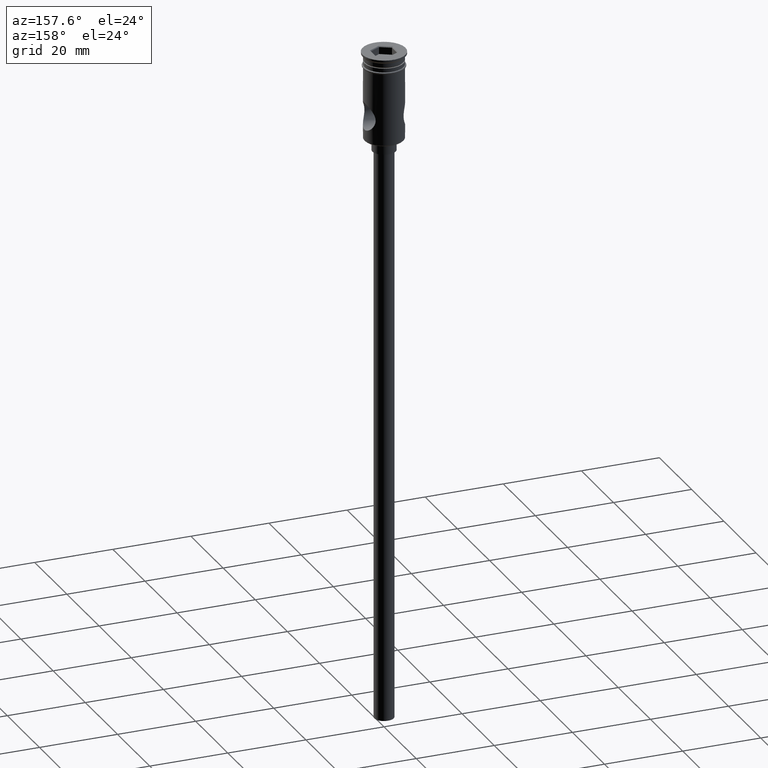
[diagram: clean part render]
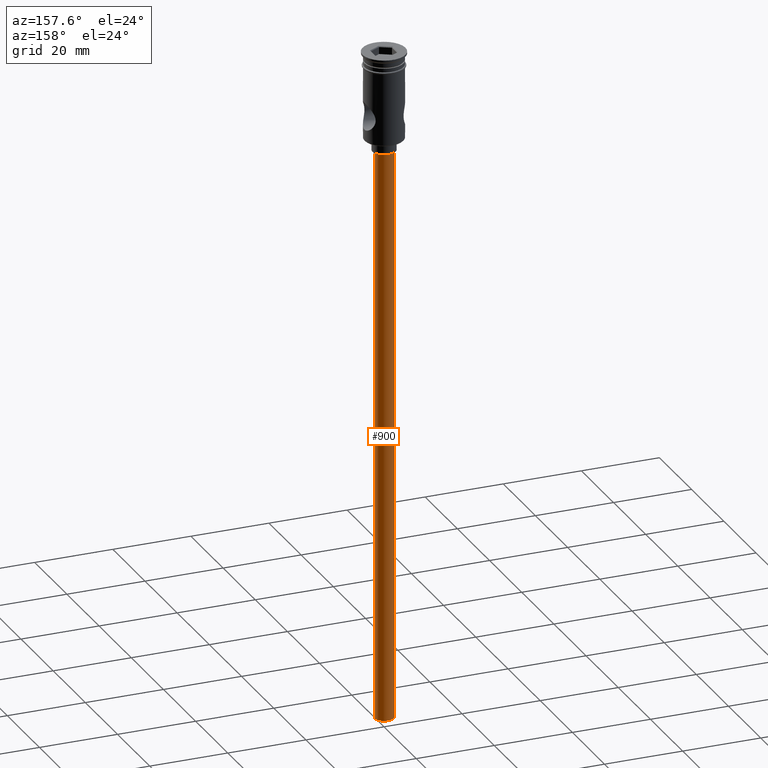
[diagram: same view with one face highlighted and labeled with its STEP entity id]
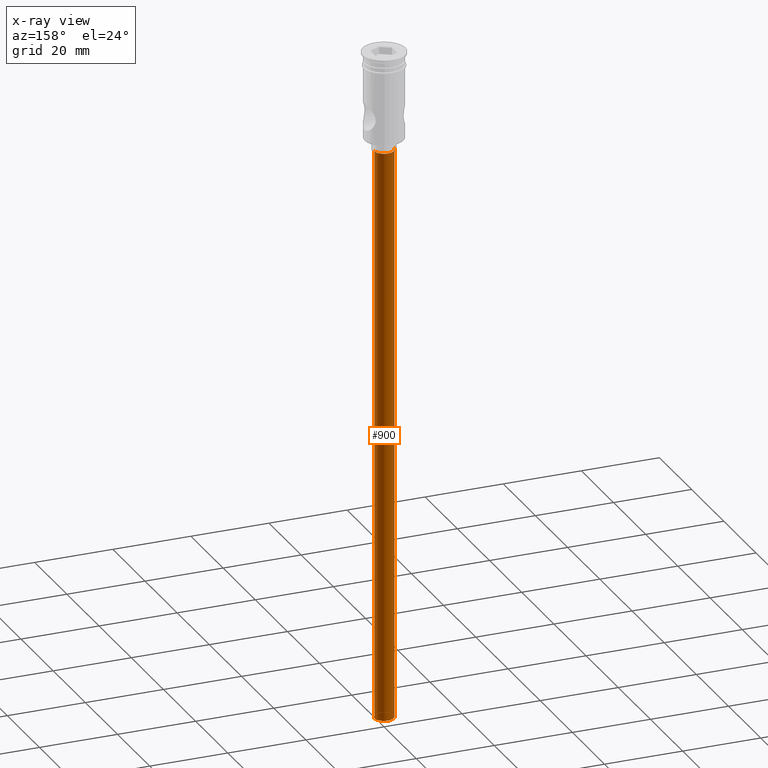
[diagram: x-ray of the same camera — body ghosted, the highlighted face saturated]
A machine part, auxiliary view. The second image highlights one B-rep face of the part: STEP entity #900.
The next image is the same camera in x-ray: the body ghosted, the highlighted face saturated — about 0% of this face is hidden behind the body in this view.
In plain terms, the highlighted cylindrical surface (edge-blend (fillet) strip) has radius 2.5 mm, axis along (-0, -0, 1).
Its self-contained STEP definition (entity closure, byte-faithful):
#39 = EDGE_CURVE ( 'NONE', #242, #1398, #295, .T. ) ;
#88 = CARTESIAN_POINT ( 'NONE',  ( -2.500000000000000000, 3.061616997868383141E-16, -172.5000000000000000 ) ) ;
#242 = VERTEX_POINT ( 'NONE', #88 ) ;
#286 = AXIS2_PLACEMENT_3D ( 'NONE', #1361, #928, #820 ) ;
#295 = LINE ( 'NONE', #758, #1165 ) ;
#304 = CARTESIAN_POINT ( 'NONE',  ( -2.500000000000000000, 3.061616997868383141E-16, -25.50000000000000000 ) ) ;
#370 = ORIENTED_EDGE ( 'NONE', *, *, #1078, .F. ) ;
#514 = ORIENTED_EDGE ( 'NONE', *, *, #1229, .F. ) ;
#652 = CIRCLE ( 'NONE', #1220, 2.500000000000000000 ) ;
#684 = ORIENTED_EDGE ( 'NONE', *, *, #39, .T. ) ;
#715 = VECTOR ( 'NONE', #1337, 1000.000000000000000 ) ;
#725 = ORIENTED_EDGE ( 'NONE', *, *, #1121, .T. ) ;
#735 = CYLINDRICAL_SURFACE ( 'NONE', #1238, 2.500000000000000000 ) ;
#758 = CARTESIAN_POINT ( 'NONE',  ( -2.500000000000000000, 3.061616997868383141E-16, -172.5000000000000000 ) ) ;
#787 = DIRECTION ( 'NONE',  ( -1.000000000000000000, 0.000000000000000000, 0.000000000000000000 ) ) ;
#820 = DIRECTION ( 'NONE',  ( -1.000000000000000000, 0.000000000000000000, 0.000000000000000000 ) ) ;
#839 = CARTESIAN_POINT ( 'NONE',  ( 2.500000000000000000, 0.000000000000000000, -172.5000000000000000 ) ) ;
#900 = ADVANCED_FACE ( 'NONE', ( #1386 ), #735, .T. ) ;
#905 = CARTESIAN_POINT ( 'NONE',  ( 2.500000000000000000, 0.000000000000000000, -172.5000000000000000 ) ) ;
#928 = DIRECTION ( 'NONE',  ( 0.000000000000000000, 0.000000000000000000, -1.000000000000000000 ) ) ;
#956 = CARTESIAN_POINT ( 'NONE',  ( 2.500000000000000000, 0.000000000000000000, -25.50000000000000000 ) ) ;
#966 = VERTEX_POINT ( 'NONE', #956 ) ;
#988 = DIRECTION ( 'NONE',  ( 0.000000000000000000, 0.000000000000000000, -1.000000000000000000 ) ) ;
#1078 = EDGE_CURVE ( 'NONE', #1324, #966, #1224, .T. ) ;
#1101 = CIRCLE ( 'NONE', #286, 2.500000000000000000 ) ;
#1121 = EDGE_CURVE ( 'NONE', #1398, #966, #652, .T. ) ;
#1132 = CARTESIAN_POINT ( 'NONE',  ( 0.000000000000000000, 0.000000000000000000, -25.50000000000000000 ) ) ;
#1165 = VECTOR ( 'NONE', #1211, 1000.000000000000000 ) ;
#1198 = DIRECTION ( 'NONE',  ( 1.000000000000000000, 0.000000000000000000, 0.000000000000000000 ) ) ;
#1211 = DIRECTION ( 'NONE',  ( -0.000000000000000000, -0.000000000000000000, 1.000000000000000000 ) ) ;
#1220 = AXIS2_PLACEMENT_3D ( 'NONE', #1132, #988, #787 ) ;
#1224 = LINE ( 'NONE', #905, #715 ) ;
#1229 = EDGE_CURVE ( 'NONE', #242, #1324, #1101, .T. ) ;
#1238 = AXIS2_PLACEMENT_3D ( 'NONE', #1275, #1391, #1198 ) ;
#1275 = CARTESIAN_POINT ( 'NONE',  ( 0.000000000000000000, 0.000000000000000000, -172.5000000000000000 ) ) ;
#1324 = VERTEX_POINT ( 'NONE', #839 ) ;
#1337 = DIRECTION ( 'NONE',  ( -0.000000000000000000, -0.000000000000000000, 1.000000000000000000 ) ) ;
#1361 = CARTESIAN_POINT ( 'NONE',  ( 0.000000000000000000, 0.000000000000000000, -172.5000000000000000 ) ) ;
#1384 = EDGE_LOOP ( 'NONE', ( #514, #684, #725, #370 ) ) ;
#1386 = FACE_OUTER_BOUND ( 'NONE', #1384, .T. ) ;
#1391 = DIRECTION ( 'NONE',  ( -0.000000000000000000, -0.000000000000000000, 1.000000000000000000 ) ) ;
#1398 = VERTEX_POINT ( 'NONE', #304 ) ;